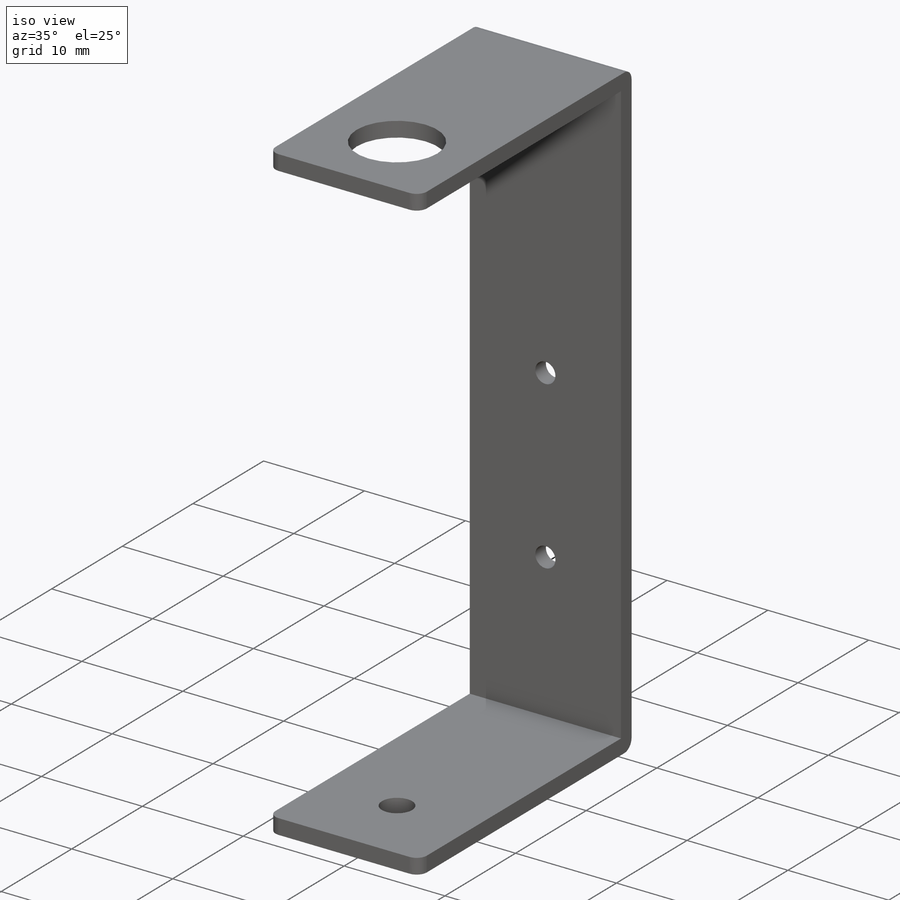
[diagram: iso view]
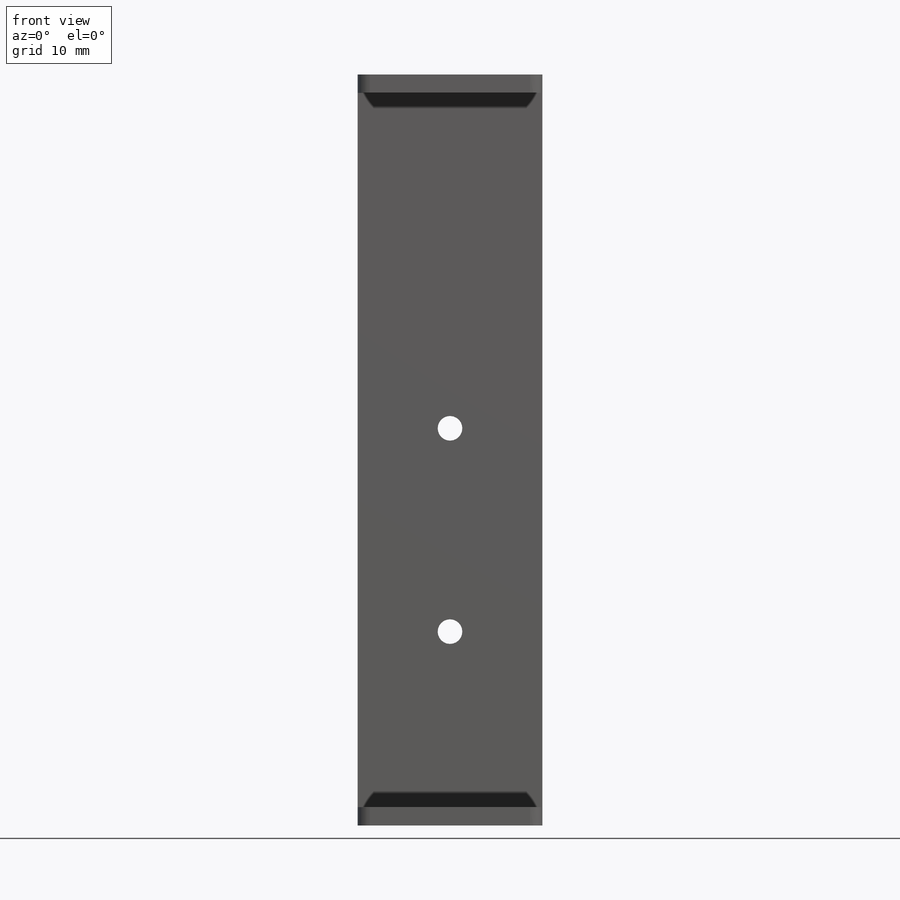
[diagram: front view]
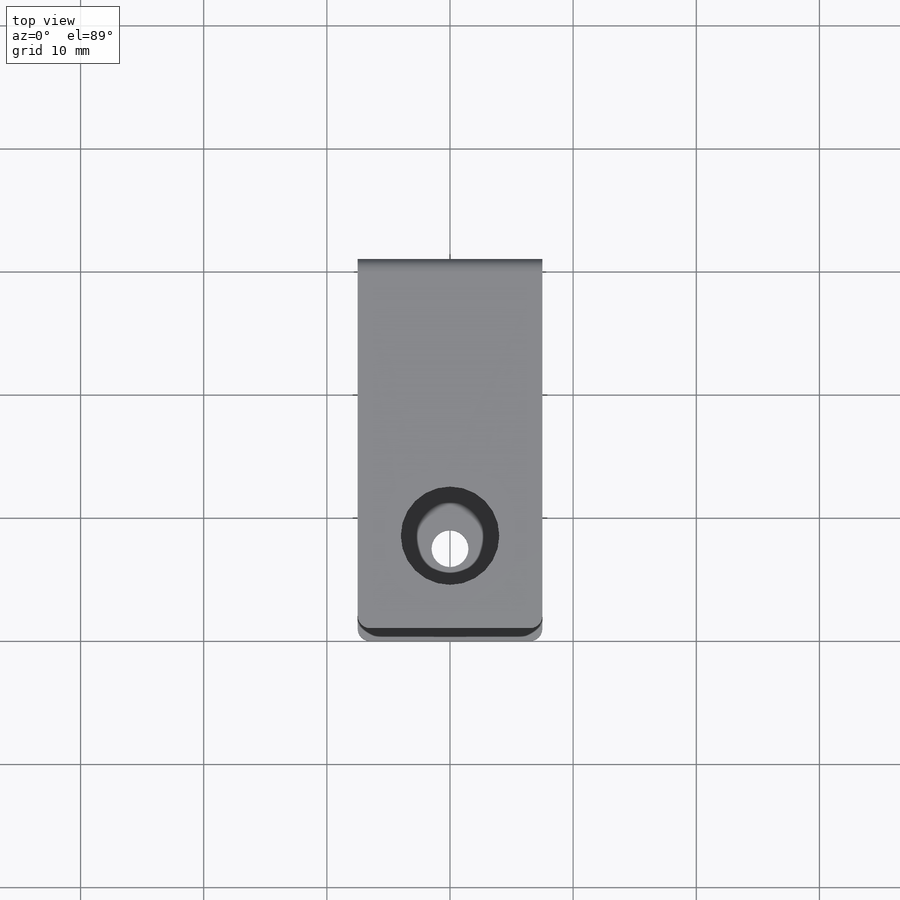
[diagram: top view]
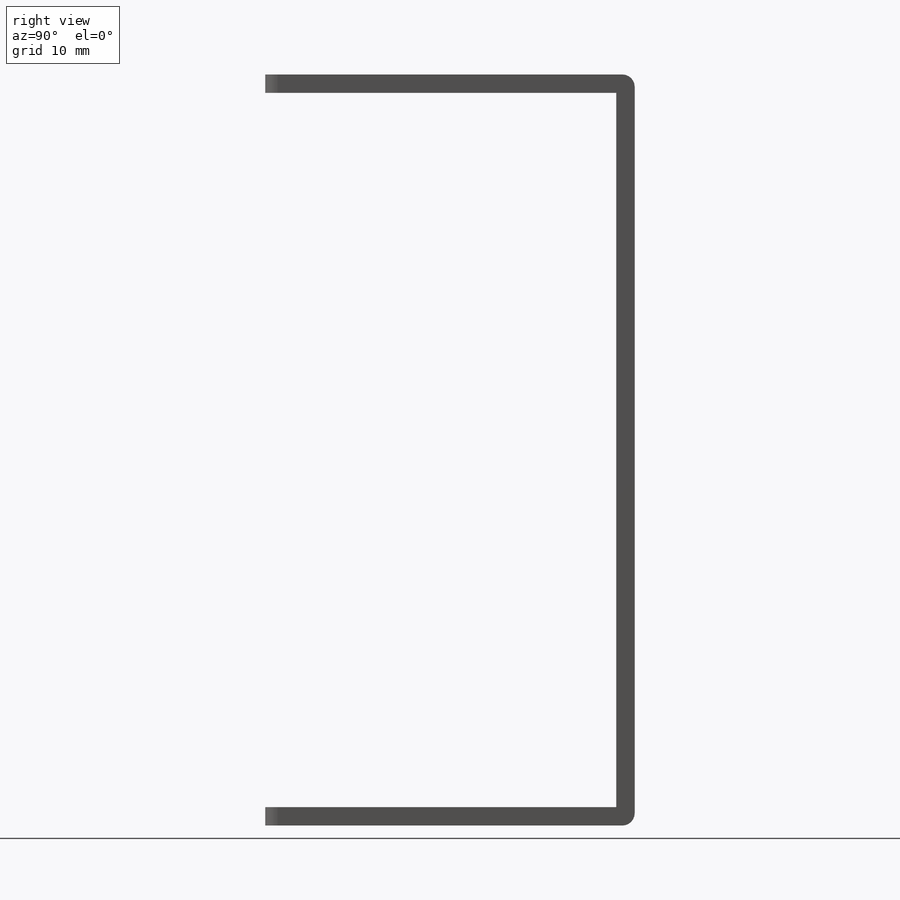
[diagram: right view]
SOLIDWORKS PART (.sldprt)
format: sldprt  version: not decoded by parser v0  size: 215,552 bytes
history: native  units: mm
features: sketch x5, cut_extrude x3, extrude x2, material x1, fillet x1 (+13 scaffold rows collapsed)
feature tree (25):
  scaffold x13  (default folders/planes/origin — collapsed)
  material  "Material <not specified>"
  sketch  "Sketch1"  dims[c1.D3=8.0mm c1.D1=15.0mm c1.D2=61.0mm c2.D3=~3.652672mm]
  extrude  "Boss-Extrude1"  Depth=1.5mm
  sketch  "Sketch2"  dims[D1=1.5mm D2=1.5mm]
  extrude  "Boss-Extrude2"  Depth=28.5mm
  sketch  "Sketch3"  dims[D2=3.0mm D1=7.5mm]
  cut_extrude  "Cut-Extrude1"  [1 undecoded]
  fillet  "Fillet1"  Radius=1mm
  sketch  "Sketch5"  dims[D1=8.0mm]
  cut_extrude  "Cut-Extrude2"  [1 undecoded]
  sketch  "Sketch6"  dims[c1.D1=2.0mm c1.D2=2.0mm c2.D2=2.0mm c2.D3=~3.681783mm c3.D3=~3.681783mm c4.D3=~3.681783mm c5.D3=~3.681783mm c5.D4=2.0mm c5.D2=13.25mm c6.D3=14.512mm]
  cut_extrude  "Cut-Extrude3"  Depth=10mm
decode coverage: 9 of 11 modeling features carry decoded parameters
note: ~ marks probable driven/reference dimensions
note: 2 parameter values undecoded
note: suppression state not decoded; provenance and decode notes live in map.json
